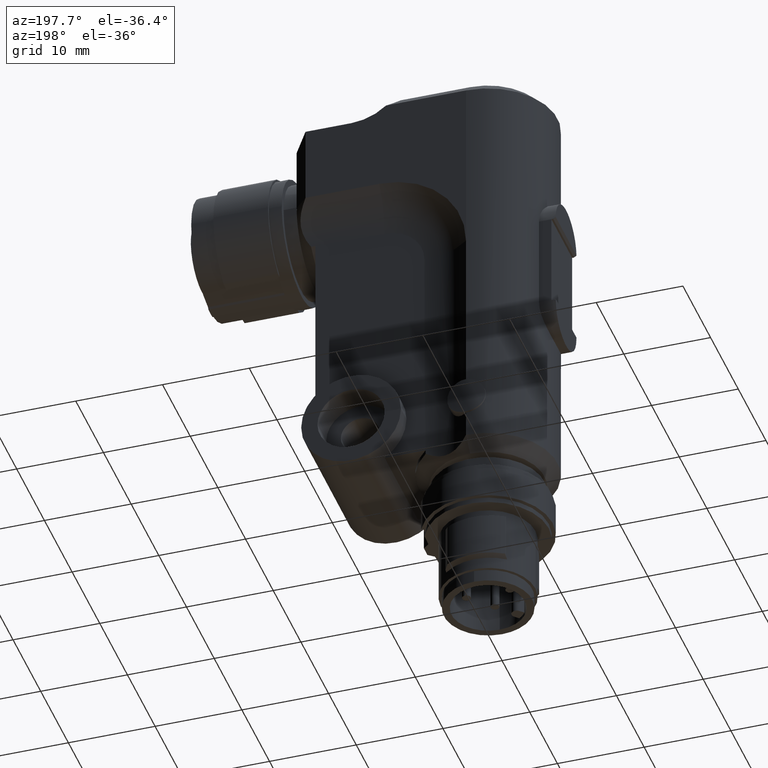
[diagram: clean part render]
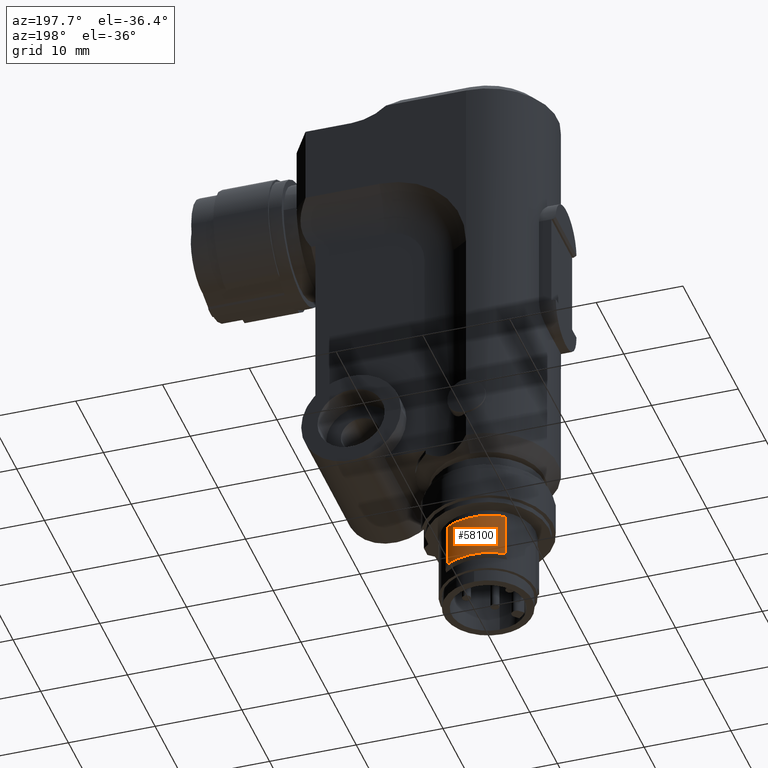
[diagram: same view with one face highlighted and labeled with its STEP entity id]
A machine part, auxiliary view. The second image highlights one B-rep face of the part: STEP entity #58100.
In plain terms, the highlighted cylindrical surface (partial cylindrical patch) has radius 6 mm, axis along (0, -0, -1).
Its self-contained STEP definition (entity closure, byte-faithful):
#42920=CARTESIAN_POINT('',(0.000227798348049646,0.00706739753394903,
-10.122447836798));
#42930=CARTESIAN_POINT('',(0.400298612059885,12.4191831965239,
-17.2923077904168));
#42940=CARTESIAN_POINT('',(-0.0039121872767538,0.00720083871703148,
-10.0292170296535));
#42950=CARTESIAN_POINT('',(-6.87469047086854,12.6536726944698,
-17.1990769832723));
#42960=CARTESIAN_POINT('',(-0.00693395635152427,0.00436778397316084,
-9.9656786439425));
#42970=CARTESIAN_POINT('',(-12.1846936985795,7.67528769498796,
-17.1355385975613));
#42980=CARTESIAN_POINT('',(-0.00706739753460539,0.000227798348351627,
-9.87244783679799));
#42990=CARTESIAN_POINT('',(-12.4191831965238,0.40029861206018,
-17.0423077904168));
#43000=CARTESIAN_POINT('',(-0.00720083871768651,-0.0039121872764567,
-9.77921702965347));
#43010=CARTESIAN_POINT('',(-12.6536726944698,-6.8746904708676,
-16.9490769832723));
#43020=CARTESIAN_POINT('',(-0.00436778397381232,-0.00693395635122185,
-9.7156786439425));
#43030=CARTESIAN_POINT('',(-7.6752876949892,-12.1846936985785,
-16.8855385975614));
#43040=CARTESIAN_POINT('',(-0.000227798349001773,-0.00706739753430385,
-9.62244783679799));
#43050=CARTESIAN_POINT('',(-0.400298612060752,-12.4191831965243,
-16.7923077904168));
#43060=CARTESIAN_POINT('',(0.00391218727580167,-0.0072008387173863,
-9.52921702965347));
#43070=CARTESIAN_POINT('',(6.87469047086771,-12.6536726944701,
-16.6990769832723));
#43080=CARTESIAN_POINT('',(0.00693395635057215,-0.00436778397351567,
-9.4656786439425));
#43090=CARTESIAN_POINT('',(12.1846936985786,-7.67528769498831,
-16.6355385975613));
#43100=CARTESIAN_POINT('',(0.00706739753365326,-0.000227798348706454,
-9.37244783679799));
#43110=CARTESIAN_POINT('',(12.4191831965231,-0.400298612060529,
-16.5423077904168));
#43120=CARTESIAN_POINT('',(0.00720083871673438,0.00391218727610232,
-9.27921702965348));
#43130=CARTESIAN_POINT('',(12.653672694469,6.87469047086726,
-16.4490769832723));
#43140=CARTESIAN_POINT('',(0.0043677839728602,0.00693395635086658,
-9.2156786439425));
#43150=CARTESIAN_POINT('',(7.67528769498845,12.1846936985781,
-16.3855385975613));
#43160=CARTESIAN_POINT('',(0.000227798348056751,0.00706739753394903,
-9.12244783679799));
#43170=CARTESIAN_POINT('',(0.40029861206002,12.419183196524,
-16.2923077904168));
#43180=CARTESIAN_POINT('',(-0.0039121872767609,0.00720083871703148,
-9.02921702965348));
#43190=CARTESIAN_POINT('',(-6.87469047086841,12.6536726944698,
-16.1990769832723));
#43200=CARTESIAN_POINT('',(-0.00693395635151717,0.0043677839731604,
-8.9656786439425));
#43210=CARTESIAN_POINT('',(-12.1846936985793,7.67528769498796,
-16.1355385975613));
#43220=CARTESIAN_POINT('',(-0.00706739753459829,0.000227798348351183,
-8.87244783679799));
#43230=CARTESIAN_POINT('',(-12.4191831965237,0.400298612060182,
-16.0423077904168));
#43240=CARTESIAN_POINT('',(-0.00720083871768651,-0.00391218727645803,
-8.77921702965347));
#43250=CARTESIAN_POINT('',(-12.6536726944697,-6.87469047086759,
-15.9490769832723));
#43260=CARTESIAN_POINT('',(-0.00436778397381943,-0.00693395635122185,
-8.7156786439425));
#43270=CARTESIAN_POINT('',(-7.67528769498907,-12.1846936985785,
-15.8855385975613));
#43280=CARTESIAN_POINT('',(-0.000227798349008879,-0.0070673975343043,
-8.62244783679799));
#43290=CARTESIAN_POINT('',(-0.400298612060617,-12.4191831965243,
-15.7923077904168));
#43300=CARTESIAN_POINT('',(0.00391218727580878,-0.00720083871738675,
-8.52921702965347));
#43310=CARTESIAN_POINT('',(6.87469047086784,-12.6536726944701,
-15.6990769832723));
#43320=CARTESIAN_POINT('',(0.00693395635056504,-0.00436778397351612,
-8.4656786439425));
#43330=CARTESIAN_POINT('',(12.1846936985788,-7.6752876949883,
-15.6355385975613));
#43340=CARTESIAN_POINT('',(0.00706739753365326,-0.000227798348706898,
-8.37244783679799));
#43350=CARTESIAN_POINT('',(12.4191831965232,-0.40029861206052,
-15.5423077904168));
#43360=CARTESIAN_POINT('',(0.00720083871673438,0.00391218727610143,
-8.27921702965347));
#43370=CARTESIAN_POINT('',(12.6536726944691,6.87469047086724,
-15.4490769832723));
#43380=CARTESIAN_POINT('',(0.0043677839728602,0.00693395635086569,
-8.2156786439425));
#43390=CARTESIAN_POINT('',(7.67528769498858,12.1846936985781,
-15.3855385975613));
#43400=CARTESIAN_POINT('',(0.000227798348049646,0.00706739753394769,
-8.12244783679799));
#43410=CARTESIAN_POINT('',(0.400298612060148,12.4191831965239,
-15.2923077904168));
#43420=CARTESIAN_POINT('',(-0.0039121872767609,0.00720083871703014,
-8.02921702965347));
#43430=CARTESIAN_POINT('',(-6.87469047086828,12.6536726944698,
-15.1990769832723));
#43440=CARTESIAN_POINT('',(-0.00693395635152427,0.00436778397315951,
-7.9656786439425));
#43450=CARTESIAN_POINT('',(-12.1846936985792,7.67528769498796,
-15.1355385975613));
#43460=CARTESIAN_POINT('',(-0.00706739753460539,0.00022779834834985,
-7.87244783679799));
#43470=CARTESIAN_POINT('',(-12.4191831965236,0.400298612060175,
-15.0423077904168));
#43480=CARTESIAN_POINT('',(-0.00720083871768651,-0.00391218727645892,
-7.77921702965347));
#43490=CARTESIAN_POINT('',(-12.6536726944695,-6.87469047086758,
-14.9490769832723));
#43500=CARTESIAN_POINT('',(-0.00436778397381943,-0.00693395635122229,
-7.71567864394251));
#43510=CARTESIAN_POINT('',(-7.67528769498894,-12.1846936985785,
-14.8855385975613));
#43520=CARTESIAN_POINT('',(-0.000227798349008879,-0.00706739753430474,
-7.62244783679799));
#43530=CARTESIAN_POINT('',(-0.400298612060489,-12.4191831965243,
-14.7923077904168));
#43540=CARTESIAN_POINT('',(0.00391218727580167,-0.00720083871738719,
-7.52921702965348));
#43550=CARTESIAN_POINT('',(6.87469047086797,-12.6536726944701,
-14.6990769832723));
#43560=CARTESIAN_POINT('',(0.00693395635056504,-0.00436778397351656,
-7.46567864394251));
#43570=CARTESIAN_POINT('',(12.1846936985789,-7.6752876949883,
-14.6355385975613));
#43580=CARTESIAN_POINT('',(0.00706739753364616,-0.00022779834870823,
-7.37244783679799));
#43590=CARTESIAN_POINT('',(12.4191831965233,-0.400298612060521,
-14.5423077904168));
#43600=CARTESIAN_POINT('',(0.00720083871672728,0.00391218727610143,
-7.27921702965348));
#43610=CARTESIAN_POINT('',(12.6536726944693,6.87469047086724,
-14.4490769832723));
#43620=CARTESIAN_POINT('',(0.0043677839728602,0.00693395635086524,
-7.2156786439425));
#43630=CARTESIAN_POINT('',(7.6752876949887,12.1846936985781,
-14.3855385975613));
#43640=CARTESIAN_POINT('',(0.000227798348049646,0.00706739753394769,
-7.12244783679799));
#43650=CARTESIAN_POINT('',(0.400298612060276,12.419183196524,
-14.2923077904168));
#43660=CARTESIAN_POINT('',(-0.0039121872767609,0.0072008387170297,
-7.02921702965347));
#43670=CARTESIAN_POINT('',(-6.87469047086815,12.6536726944698,
-14.1990769832723));
#43680=CARTESIAN_POINT('',(-0.00693395635152427,0.00436778397315951,
-6.9656786439425));
#43690=CARTESIAN_POINT('',(-12.1846936985791,7.67528769498796,
-14.1355385975613));
#43700=CARTESIAN_POINT('',(-0.00706739753460539,0.000227798348350738,
-6.87244783679799));
#43710=CARTESIAN_POINT('',(-12.4191831965235,0.400298612060177,
-14.0423077904168));
#43720=CARTESIAN_POINT('',(-0.00720083871769361,-0.00391218727645937,
-6.77921702965347));
#43730=CARTESIAN_POINT('',(-12.6536726944694,-6.87469047086759,
-13.9490769832723));
#43740=CARTESIAN_POINT('',(-0.00436778397381943,-0.00693395635122318,
-6.7156786439425));
#43750=CARTESIAN_POINT('',(-7.67528769498881,-12.1846936985785,
-13.8855385975613));
#43760=CARTESIAN_POINT('',(-0.000227798349008879,-0.00706739753430563,
-6.62244783679799));
#43770=CARTESIAN_POINT('',(-0.400298612060361,-12.4191831965243,
-13.7923077904168));
#43780=CARTESIAN_POINT('',(0.00391218727580167,-0.00720083871738808,
-6.52921702965348));
#43790=CARTESIAN_POINT('',(6.8746904708681,-12.6536726944701,
-13.6990769832723));
#43800=CARTESIAN_POINT('',(0.00693395635056504,-0.004367783973517,
-6.4656786439425));
#43810=CARTESIAN_POINT('',(12.184693698579,-7.67528769498831,
-13.6355385975613));
#43820=CARTESIAN_POINT('',(0.00706739753365326,-0.00022779834870823,
-6.37244783679799));
#43830=CARTESIAN_POINT('',(12.4191831965234,-0.400298612060527,
-13.5423077904168));
#43840=CARTESIAN_POINT('',(0.00720083871672728,0.00391218727610143,
-6.27921702965348));
#43850=CARTESIAN_POINT('',(12.6536726944694,6.87469047086724,
-13.4490769832723));
#43860=CARTESIAN_POINT('',(0.0043677839728602,0.0069339563508648,
-6.2156786439425));
#43870=CARTESIAN_POINT('',(7.67528769498884,12.1846936985781,
-13.3855385975613));
#43880=CARTESIAN_POINT('',(0.000227798348042541,0.00706739753394681,
-6.12244783679799));
#43890=CARTESIAN_POINT('',(0.400298612060411,12.4191831965239,
-13.2923077904168));
#43900=CARTESIAN_POINT('',(-0.0039121872767609,0.00720083871702926,
-6.02921702965348));
#43910=CARTESIAN_POINT('',(-6.87469047086802,12.6536726944698,
-13.1990769832723));
#43920=CARTESIAN_POINT('',(-0.00693395635152427,0.00436778397315907,
-5.96567864394251));
#43930=CARTESIAN_POINT('',(-12.1846936985789,7.67528769498796,
-13.1355385975613));
#43940=CARTESIAN_POINT('',(-0.00706739753460539,0.000227798348348518,
-5.87244783679799));
#43950=CARTESIAN_POINT('',(-12.4191831965233,0.400298612060183,
-13.0423077904168));
#43960=CARTESIAN_POINT('',(-0.00720083871768651,-0.00391218727645981,
-5.77921702965347));
#43970=CARTESIAN_POINT('',(-12.6536726944693,-6.87469047086758,
-12.9490769832723));
#43980=CARTESIAN_POINT('',(-0.00436778397381943,-0.00693395635122407,
-5.7156786439425));
#43990=CARTESIAN_POINT('',(-7.67528769498868,-12.1846936985785,
-12.8855385975613));
#44000=CARTESIAN_POINT('',(-0.000227798349008879,-0.00706739753430607,
-5.62244783679799));
#44010=CARTESIAN_POINT('',(-0.400298612060226,-12.4191831965243,
-12.7923077904168));
#44020=CARTESIAN_POINT('',(0.00391218727579457,-0.00720083871738897,
-5.52921702965347));
#44030=CARTESIAN_POINT('',(6.87469047086822,-12.6536726944701,
-12.6990769832723));
#44040=CARTESIAN_POINT('',(0.00693395635056504,-0.00436778397351834,
-5.4656786439425));
#44050=CARTESIAN_POINT('',(12.1846936985792,-7.67528769498831,
-12.6355385975613));
#44060=CARTESIAN_POINT('',(0.00706739753363905,-0.000227798348709118,
-5.37244783679799));
#44070=CARTESIAN_POINT('',(12.4191831965236,-0.400298612060529,
-12.5423077904168));
#44080=CARTESIAN_POINT('',(0.00720083871672728,0.00391218727609965,
-5.27921702965347));
#44090=CARTESIAN_POINT('',(12.6536726944695,6.87469047086723,
-12.4490769832723));
#44100=CARTESIAN_POINT('',(0.0043677839728602,0.00693395635086391,
-5.2156786439425));
#44110=CARTESIAN_POINT('',(7.67528769498897,12.1846936985781,
-12.3855385975613));
#44120=CARTESIAN_POINT('',(0.000227798348049646,0.00706739753394592,
-5.12244783679799));
#44130=CARTESIAN_POINT('',(0.400298612060546,12.419183196524,
-12.2923077904168));
#44140=CARTESIAN_POINT('',(-0.0039121872767609,0.00720083871702837,
-5.02921702965348));
#44150=CARTESIAN_POINT('',(-6.87469047086788,12.6536726944698,
-12.1990769832723));
#44160=CARTESIAN_POINT('',(-0.00693395635152427,0.00436778397315774,
-4.9656786439425));
#44170=CARTESIAN_POINT('',(-12.1846936985788,7.67528769498801,
-12.1355385975613));
#44180=CARTESIAN_POINT('',(-0.00706739753460539,0.000227798348348518,
-4.87244783679799));
#44190=CARTESIAN_POINT('',(-12.4191831965232,0.400298612060228,
-12.0423077904168));
#44200=CARTESIAN_POINT('',(-0.00720083871768651,-0.00391218727646026,
-4.77921702965348));
#44210=CARTESIAN_POINT('',(-12.6536726944691,-6.87469047086758,
-11.9490769832723));
#44220=CARTESIAN_POINT('',(-0.00436778397381943,-0.00693395635122451,
-4.7156786439425));
#44230=CARTESIAN_POINT('',(-7.67528769498854,-12.1846936985785,
-11.8855385975613));
#44240=CARTESIAN_POINT('',(-0.000227798349008879,-0.00706739753430696,
-4.62244783679799));
#44250=CARTESIAN_POINT('',(-0.400298612060091,-12.4191831965243,
-11.7923077904168));
#44260=CARTESIAN_POINT('',(0.00391218727580167,-0.00720083871738897,
-4.52921702965347));
#44270=CARTESIAN_POINT('',(6.87469047086836,-12.6536726944701,
-11.6990769832723));
#44280=CARTESIAN_POINT('',(0.00693395635055793,-0.00436778397351834,
-4.46567864394251));
#44290=CARTESIAN_POINT('',(12.1846936985793,-7.67528769498831,
-11.6355385975613));
#44300=CARTESIAN_POINT('',(0.00706739753363905,-0.000227798348709118,
-4.37244783679799));
#44310=CARTESIAN_POINT('',(12.4191831965237,-0.400298612060533,
-11.5423077904168));
#44320=CARTESIAN_POINT('',(0.00720083871672017,0.00391218727609921,
-4.27921702965347));
#44330=CARTESIAN_POINT('',(12.6536726944697,6.87469047086727,
-11.4490769832723));
#44340=CARTESIAN_POINT('',(0.00436778397285309,0.00693395635086302,
-4.2156786439425));
#44350=CARTESIAN_POINT('',(7.67528769498909,12.1846936985781,
-11.3855385975613));
#44360=CARTESIAN_POINT('',(0.000227798348049646,0.00706739753394547,
-4.12244783679799));
#44370=CARTESIAN_POINT('',(0.400298612060674,12.419183196524,
-11.2923077904168));
#44380=(BOUNDED_SURFACE() B_SPLINE_SURFACE(1,3,((#42920,#42940,#42960,
#42980,#43000,#43020,#43040,#43060,#43080,#43100,#43120,#43140,#43160,
#43180,#43200,#43220,#43240,#43260,#43280,#43300,#43320,#43340,#43360,
#43380,#43400,#43420,#43440,#43460,#43480,#43500,#43520,#43540,#43560,
#43580,#43600,#43620,#43640,#43660,#43680,#43700,#43720,#43740,#43760,
#43780,#43800,#43820,#43840,#43860,#43880,#43900,#43920,#43940,#43960,
#43980,#44000,#44020,#44040,#44060,#44080,#44100,#44120,#44140,#44160,
#44180,#44200,#44220,#44240,#44260,#44280,#44300,#44320,#44340,#44360),(
#42930,#42950,#42970,#42990,#43010,#43030,#43050,#43070,#43090,#43110,
#43130,#43150,#43170,#43190,#43210,#43230,#43250,#43270,#43290,#43310,
#43330,#43350,#43370,#43390,#43410,#43430,#43450,#43470,#43490,#43510,
#43530,#43550,#43570,#43590,#43610,#43630,#43650,#43670,#43690,#43710,
#43730,#43750,#43770,#43790,#43810,#43830,#43850,#43870,#43890,#43910,
#43930,#43950,#43970,#43990,#44010,#44030,#44050,#44070,#44090,#44110,
#44130,#44150,#44170,#44190,#44210,#44230,#44250,#44270,#44290,#44310,
#44330,#44350,#44370)),.UNSPECIFIED.,.F.,.F.,.F.) 
B_SPLINE_SURFACE_WITH_KNOTS((2,2),(4,3,3,3,3,3,3,3,3,3,3,3,3,3,3,3,3,3,3
,3,3,3,3,3,4),(-6.3214010908522,8.01831881638544),(-0.828427124746191,
-4.44089209850063E-16,0.82842712474619,1.65685424949238,2.48528137423857
,3.31370849898476,4.14213562373095,4.97056274847714,5.79898987322333,
6.62741699796952,7.45584412271571,8.2842712474619,9.11269837220809,
9.94112549695428,10.7695526217005,11.5979797464467,12.4264068711929,
13.254833995939,14.0832611206852,14.9116882454314,15.7401153701776,
16.5685424949238,17.39696961967,18.2253967444162,19.0538238691624),
.UNSPECIFIED.) GEOMETRIC_REPRESENTATION_ITEM() RATIONAL_B_SPLINE_SURFACE
(((1.17157287525381,0.942809041582063,0.942809041582063,1.17157287525381
,0.942809041582063,0.942809041582063,1.17157287525381,0.942809041582063,
0.942809041582063,1.17157287525381,0.942809041582063,0.942809041582063,
1.17157287525381,0.942809041582063,0.942809041582063,1.17157287525381,
0.942809041582063,0.942809041582063,1.17157287525381,0.942809041582063,
0.942809041582063,1.17157287525381,0.942809041582063,0.942809041582063,
1.17157287525381,0.942809041582063,0.942809041582063,1.17157287525381,
0.942809041582063,0.942809041582063,1.17157287525381,0.942809041582063,
0.942809041582063,1.17157287525381,0.942809041582063,0.942809041582063,
1.17157287525381,0.942809041582063,0.942809041582063,1.17157287525381,
0.942809041582063,0.942809041582063,1.17157287525381,0.942809041582063,
0.942809041582063,1.17157287525381,0.942809041582063,0.942809041582063,
1.17157287525381,0.942809041582063,0.942809041582063,1.17157287525381,
0.942809041582063,0.942809041582063,1.17157287525381,0.942809041582063,
0.942809041582063,1.17157287525381,0.942809041582063,0.942809041582063,
1.17157287525381,0.942809041582063,0.942809041582063,1.17157287525381,
0.942809041582063,0.942809041582063,1.17157287525381,0.942809041582063,
0.942809041582063,1.17157287525381,0.942809041582063,0.942809041582063,
1.17157287525381),(1.17157287525381,0.942809041582063,0.942809041582063,
1.17157287525381,0.942809041582063,0.942809041582063,1.17157287525381,
0.942809041582063,0.942809041582063,1.17157287525381,0.942809041582063,
0.942809041582063,1.17157287525381,0.942809041582063,0.942809041582063,
1.17157287525381,0.942809041582063,0.942809041582063,1.17157287525381,
0.942809041582063,0.942809041582063,1.17157287525381,0.942809041582063,
0.942809041582063,1.17157287525381,0.942809041582063,0.942809041582063,
1.17157287525381,0.942809041582063,0.942809041582063,1.17157287525381,
0.942809041582063,0.942809041582063,1.17157287525381,0.942809041582063,
0.942809041582063,1.17157287525381,0.942809041582063,0.942809041582063,
1.17157287525381,0.942809041582063,0.942809041582063,1.17157287525381,
0.942809041582063,0.942809041582063,1.17157287525381,0.942809041582063,
0.942809041582063,1.17157287525381,0.942809041582063,0.942809041582063,
1.17157287525381,0.942809041582063,0.942809041582063,1.17157287525381,
0.942809041582063,0.942809041582063,1.17157287525381,0.942809041582063,
0.942809041582063,1.17157287525381,0.942809041582063,0.942809041582063,
1.17157287525381,0.942809041582063,0.942809041582063,1.17157287525381,
0.942809041582063,0.942809041582063,1.17157287525381,0.942809041582063,
0.942809041582063,1.17157287525381))) REPRESENTATION_ITEM('') SURFACE())
;
#45520=CARTESIAN_POINT('',(0.000227798348092279,0.00706739753483587,
-18.1049864329676));
#45530=CARTESIAN_POINT('',(0.400298612059878,12.4191831965239,
-10.9351264793493));
#45540=CARTESIAN_POINT('',(-0.00391218727723697,0.00720083871793298,
-18.0117556258231));
#45550=CARTESIAN_POINT('',(-6.87469047086843,12.6536726944698,
-10.8418956722048));
#45560=CARTESIAN_POINT('',(-0.00693395635236982,0.00436778397371018,
-17.9482172401121));
#45570=CARTESIAN_POINT('',(-12.1846936985778,7.67528769498796,
-10.7783572864939));
#45580=CARTESIAN_POINT('',(-0.00706739753547225,0.000227798348384045,
-17.8549864329676));
#45590=CARTESIAN_POINT('',(-12.4191831965239,0.40029861206018,
-10.6851264793495));
#45600=CARTESIAN_POINT('',(-0.00720083871856758,-0.00391218727694032,
-17.7617556258231));
#45610=CARTESIAN_POINT('',(-12.65367269447,-6.87469047086761,
-10.5918956722051));
#45620=CARTESIAN_POINT('',(-0.00436778397434523,-0.00693395635208161,
-17.6982172401121));
#45630=CARTESIAN_POINT('',(-7.67528769498754,-12.1846936985785,
-10.5283572864942));
#45640=CARTESIAN_POINT('',(-0.000227798349023089,-0.00706739753518004,
-17.6049864329676));
#45650=CARTESIAN_POINT('',(-0.400298612060759,-12.4191831965243,
-10.4351264793497));
#45660=CARTESIAN_POINT('',(0.00391218727630616,-0.00720083871827759,
-17.5117556258231));
#45670=CARTESIAN_POINT('',(6.87469047086758,-12.6536726944701,
-10.3418956722052));
#45680=CARTESIAN_POINT('',(0.00693395635143901,-0.00436778397405391,
-17.4482172401121));
#45690=CARTESIAN_POINT('',(12.184693698577,-7.67528769498832,
-10.2783572864941));
#45700=CARTESIAN_POINT('',(0.00706739753454144,-0.000227798348729991,
-17.3549864329676));
#45710=CARTESIAN_POINT('',(12.4191831965231,-0.400298612060534,
-10.1851264793495));
#45720=CARTESIAN_POINT('',(0.00720083871764388,0.0039121872765957,
-17.2617556258231));
#45730=CARTESIAN_POINT('',(12.6536726944692,6.87469047086725,
-10.0918956722049));
#45740=CARTESIAN_POINT('',(0.00436778397341442,0.0069339563517361,
-17.1982172401121));
#45750=CARTESIAN_POINT('',(7.67528769498676,12.1846936985781,
-10.0283572864938));
#45760=CARTESIAN_POINT('',(0.000227798348092279,0.00706739753483587,
-17.1049864329676));
#45770=CARTESIAN_POINT('',(0.400298612060013,12.4191831965239,
-9.9351264793493));
#45780=CARTESIAN_POINT('',(-0.00391218727723697,0.00720083871793253,
-17.0117556258231));
#45790=CARTESIAN_POINT('',(-6.87469047086829,12.6536726944698,
-9.8418956722048));
#45800=CARTESIAN_POINT('',(-0.00693395635237692,0.00436778397370929,
-16.9482172401121));
#45810=CARTESIAN_POINT('',(-12.1846936985777,7.67528769498796,
-9.77835728649392));
#45820=CARTESIAN_POINT('',(-0.00706739753547225,0.000227798348384489,
-16.8549864329676));
#45830=CARTESIAN_POINT('',(-12.4191831965238,0.400298612060182,
-9.68512647934952));
#45840=CARTESIAN_POINT('',(-0.00720083871857469,-0.00391218727694032,
-16.7617556258231));
#45850=CARTESIAN_POINT('',(-12.6536726944699,-6.87469047086759,
-9.59189567220513));
#45860=CARTESIAN_POINT('',(-0.00436778397434523,-0.00693395635208205,
-16.6982172401121));
#45870=CARTESIAN_POINT('',(-7.67528769498741,-12.1846936985785,
-9.52835728649423));
#45880=CARTESIAN_POINT('',(-0.000227798349023089,-0.00706739753518137,
-16.6049864329676));
#45890=CARTESIAN_POINT('',(-0.400298612060631,-12.4191831965243,
-9.43512647934971));
#45900=CARTESIAN_POINT('',(0.00391218727629905,-0.00720083871827848,
-16.5117556258231));
#45910=CARTESIAN_POINT('',(6.8746904708677,-12.6536726944701,
-9.34189567220518));
#45920=CARTESIAN_POINT('',(0.00693395635143901,-0.00436778397405524,
-16.4482172401121));
#45930=CARTESIAN_POINT('',(12.1846936985771,-7.67528769498831,
-9.27835728649412));
#45940=CARTESIAN_POINT('',(0.00706739753454144,-0.000227798348730435,
-16.3549864329676));
#45950=CARTESIAN_POINT('',(12.4191831965232,-0.400298612060527,
-9.18512647934949));
#45960=CARTESIAN_POINT('',(0.00720083871764388,0.00391218727659526,
-16.2617556258231));
#45970=CARTESIAN_POINT('',(12.6536726944693,6.87469047086724,
-9.09189567220485));
#45980=CARTESIAN_POINT('',(0.00436778397341442,0.00693395635173566,
-16.1982172401121));
#45990=CARTESIAN_POINT('',(7.6752876949869,12.1846936985781,
-9.02835728649381));
#46000=CARTESIAN_POINT('',(0.000227798348085173,0.00706739753483365,
-16.1049864329676));
#46010=CARTESIAN_POINT('',(0.400298612060148,12.4191831965239,
-8.9351264793493));
#46020=CARTESIAN_POINT('',(-0.00391218727723697,0.00720083871793253,
-16.0117556258231));
#46030=CARTESIAN_POINT('',(-6.87469047086817,12.6536726944698,
-8.8418956722048));
#46040=CARTESIAN_POINT('',(-0.00693395635237692,0.00436778397370885,
-15.9482172401121));
#46050=CARTESIAN_POINT('',(-12.1846936985776,7.67528769498796,
-8.77835728649392));
#46060=CARTESIAN_POINT('',(-0.00706739753547225,0.000227798348384489,
-15.8549864329676));
#46070=CARTESIAN_POINT('',(-12.4191831965237,0.400298612060173,
-8.68512647934952));
#46080=CARTESIAN_POINT('',(-0.00720083871857469,-0.00391218727694165,
-15.7617556258231));
#46090=CARTESIAN_POINT('',(-12.6536726944697,-6.87469047086759,
-8.59189567220513));
#46100=CARTESIAN_POINT('',(-0.00436778397435234,-0.00693395635208161,
-15.6982172401121));
#46110=CARTESIAN_POINT('',(-7.67528769498728,-12.1846936985785,
-8.52835728649423));
#46120=CARTESIAN_POINT('',(-0.000227798349023089,-0.00706739753518049,
-15.6049864329676));
#46130=CARTESIAN_POINT('',(-0.400298612060503,-12.4191831965243,
-8.43512647934971));
#46140=CARTESIAN_POINT('',(0.00391218727630616,-0.00720083871827981,
-15.5117556258231));
#46150=CARTESIAN_POINT('',(6.87469047086783,-12.6536726944701,
-8.34189567220518));
#46160=CARTESIAN_POINT('',(0.00693395635143901,-0.00436778397405613,
-15.4482172401121));
#46170=CARTESIAN_POINT('',(12.1846936985773,-7.67528769498831,
-8.27835728649412));
#46180=CARTESIAN_POINT('',(0.00706739753453434,-0.000227798348730879,
-15.3549864329676));
#46190=CARTESIAN_POINT('',(12.4191831965234,-0.400298612060528,
-8.18512647934949));
#46200=CARTESIAN_POINT('',(0.00720083871763677,0.00391218727659481,
-15.2617556258231));
#46210=CARTESIAN_POINT('',(12.6536726944695,6.87469047086723,
-8.09189567220485));
#46220=CARTESIAN_POINT('',(0.00436778397341442,0.0069339563517361,
-15.1982172401121));
#46230=CARTESIAN_POINT('',(7.67528769498703,12.1846936985781,
-8.02835728649381));
#46240=CARTESIAN_POINT('',(0.000227798348085173,0.00706739753483321,
-15.1049864329676));
#46250=CARTESIAN_POINT('',(0.400298612060269,12.4191831965239,
-7.9351264793493));
#46260=CARTESIAN_POINT('',(-0.00391218727723697,0.00720083871793209,
-15.0117556258231));
#46270=CARTESIAN_POINT('',(-6.87469047086804,12.6536726944698,
-7.84189567220479));
#46280=CARTESIAN_POINT('',(-0.00693395635237692,0.00436778397370841,
-14.9482172401121));
#46290=CARTESIAN_POINT('',(-12.1846936985774,7.67528769498796,
-7.77835728649392));
#46300=CARTESIAN_POINT('',(-0.00706739753547225,0.000227798348383157,
-14.8549864329676));
#46310=CARTESIAN_POINT('',(-12.4191831965235,0.400298612060176,
-7.68512647934952));
#46320=CARTESIAN_POINT('',(-0.00720083871857469,-0.00391218727694298,
-14.7617556258231));
#46330=CARTESIAN_POINT('',(-12.6536726944696,-6.87469047086759,
-7.59189567220512));
#46340=CARTESIAN_POINT('',(-0.00436778397435234,-0.00693395635208338,
-14.6982172401121));
#46350=CARTESIAN_POINT('',(-7.67528769498714,-12.1846936985785,
-7.52835728649423));
#46360=CARTESIAN_POINT('',(-0.000227798349023089,-0.00706739753518093,
-14.6049864329676));
#46370=CARTESIAN_POINT('',(-0.400298612060375,-12.4191831965243,
-7.43512647934971));
#46380=CARTESIAN_POINT('',(0.00391218727629905,-0.00720083871828026,
-14.5117556258231));
#46390=CARTESIAN_POINT('',(6.87469047086797,-12.6536726944701,
-7.34189567220518));
#46400=CARTESIAN_POINT('',(0.00693395635143901,-0.00436778397405568,
-14.4482172401121));
#46410=CARTESIAN_POINT('',(12.1846936985774,-7.67528769498832,
-7.27835728649412));
#46420=CARTESIAN_POINT('',(0.00706739753453434,-0.000227798348730879,
-14.3549864329676));
#46430=CARTESIAN_POINT('',(12.4191831965235,-0.400298612060533,
-7.18512647934949));
#46440=CARTESIAN_POINT('',(0.00720083871763677,0.00391218727659348,
-14.2617556258231));
#46450=CARTESIAN_POINT('',(12.6536726944696,6.87469047086723,
-7.09189567220485));
#46460=CARTESIAN_POINT('',(0.00436778397341442,0.00693395635173433,
-14.1982172401121));
#46470=CARTESIAN_POINT('',(7.67528769498715,12.1846936985781,
-7.02835728649381));
#46480=CARTESIAN_POINT('',(0.000227798348092279,0.00706739753483276,
-14.1049864329676));
#46490=CARTESIAN_POINT('',(0.400298612060404,12.4191831965239,
-6.9351264793493));
#46500=CARTESIAN_POINT('',(-0.00391218727723697,0.00720083871793165,
-14.0117556258231));
#46510=CARTESIAN_POINT('',(-6.87469047086791,12.6536726944698,
-6.8418956722048));
#46520=CARTESIAN_POINT('',(-0.00693395635237692,0.00436778397370796,
-13.9482172401121));
#46530=CARTESIAN_POINT('',(-12.1846936985773,7.67528769498796,
-6.77835728649391));
#46540=CARTESIAN_POINT('',(-0.00706739753547936,0.000227798348381825,
-13.8549864329676));
#46550=CARTESIAN_POINT('',(-12.4191831965234,0.400298612060179,
-6.68512647934952));
#46560=CARTESIAN_POINT('',(-0.00720083871857469,-0.00391218727694342,
-13.7617556258231));
#46570=CARTESIAN_POINT('',(-12.6536726944695,-6.87469047086758,
-6.59189567220513));
#46580=CARTESIAN_POINT('',(-0.00436778397435234,-0.00693395635208383,
-13.6982172401121));
#46590=CARTESIAN_POINT('',(-7.67528769498701,-12.1846936985785,
-6.52835728649423));
#46600=CARTESIAN_POINT('',(-0.000227798349030195,-0.00706739753518226,
-13.6049864329676));
#46610=CARTESIAN_POINT('',(-0.40029861206024,-12.4191831965243,
-6.4351264793497));
#46620=CARTESIAN_POINT('',(0.00391218727629905,-0.00720083871828114,
-13.5117556258231));
#46630=CARTESIAN_POINT('',(6.8746904708681,-12.6536726944701,
-6.34189567220518));
#46640=CARTESIAN_POINT('',(0.00693395635143901,-0.00436778397405746,
-13.4482172401121));
#46650=CARTESIAN_POINT('',(12.1846936985775,-7.67528769498832,
-6.27835728649412));
#46660=CARTESIAN_POINT('',(0.00706739753453434,-0.000227798348731323,
-13.3549864329676));
#46670=CARTESIAN_POINT('',(12.4191831965236,-0.400298612060536,
-6.18512647934949));
#46680=CARTESIAN_POINT('',(0.00720083871763677,0.00391218727659259,
-13.2617556258231));
#46690=CARTESIAN_POINT('',(12.6536726944697,6.87469047086723,
-6.09189567220485));
#46700=CARTESIAN_POINT('',(0.00436778397340731,0.00693395635173433,
-13.1982172401121));
#46710=CARTESIAN_POINT('',(7.67528769498728,12.1846936985781,
-6.0283572864938));
#46720=CARTESIAN_POINT('',(0.000227798348085173,0.00706739753483321,
-13.1049864329676));
#46730=CARTESIAN_POINT('',(0.400298612060531,12.4191831965239,
-5.9351264793493));
#46740=CARTESIAN_POINT('',(-0.00391218727723697,0.00720083871793031,
-13.0117556258231));
#46750=CARTESIAN_POINT('',(-6.87469047086778,12.6536726944698,
-5.8418956722048));
#46760=CARTESIAN_POINT('',(-0.00693395635238403,0.00436778397370796,
-12.9482172401121));
#46770=CARTESIAN_POINT('',(-12.1846936985772,7.67528769498801,
-5.77835728649392));
#46780=CARTESIAN_POINT('',(-0.00706739753547936,0.000227798348381825,
-12.8549864329676));
#46790=CARTESIAN_POINT('',(-12.4191831965233,0.400298612060226,
-5.68512647934952));
#46800=CARTESIAN_POINT('',(-0.00720083871857469,-0.00391218727694342,
-12.7617556258231));
#46810=CARTESIAN_POINT('',(-12.6536726944693,-6.87469047086758,
-5.59189567220513));
#46820=CARTESIAN_POINT('',(-0.00436778397435234,-0.00693395635208427,
-12.6982172401121));
#46830=CARTESIAN_POINT('',(-7.67528769498688,-12.1846936985785,
-5.52835728649423));
#46840=CARTESIAN_POINT('',(-0.000227798349030195,-0.00706739753518315,
-12.6049864329676));
#46850=CARTESIAN_POINT('',(-0.400298612060105,-12.4191831965243,
-5.43512647934971));
#46860=CARTESIAN_POINT('',(0.00391218727629905,-0.00720083871828114,
-12.5117556258231));
#46870=CARTESIAN_POINT('',(6.87469047086822,-12.6536726944701,
-5.34189567220518));
#46880=CARTESIAN_POINT('',(0.00693395635143901,-0.00436778397405835,
-12.4482172401121));
#46890=CARTESIAN_POINT('',(12.1846936985777,-7.67528769498833,
-5.27835728649412));
#46900=CARTESIAN_POINT('',(0.00706739753453434,-0.000227798348732211,
-12.3549864329676));
#46910=CARTESIAN_POINT('',(12.4191831965238,-0.400298612060539,
-5.18512647934949));
#46920=CARTESIAN_POINT('',(0.00720083871763677,0.00391218727659259,
-12.2617556258231));
#46930=CARTESIAN_POINT('',(12.6536726944699,6.87469047086727,
-5.09189567220486));
#46940=CARTESIAN_POINT('',(0.00436778397340731,0.006933956351733,
-12.1982172401121));
#46950=CARTESIAN_POINT('',(7.67528769498742,12.1846936985781,
-5.02835728649381));
#46960=CARTESIAN_POINT('',(0.000227798348085173,0.00706739753483143,
-12.1049864329676));
#46970=CARTESIAN_POINT('',(0.400298612060659,12.4191831965239,
-4.9351264793493));
#46980=(BOUNDED_SURFACE() B_SPLINE_SURFACE(1,3,((#45520,#45540,#45560,
#45580,#45600,#45620,#45640,#45660,#45680,#45700,#45720,#45740,#45760,
#45780,#45800,#45820,#45840,#45860,#45880,#45900,#45920,#45940,#45960,
#45980,#46000,#46020,#46040,#46060,#46080,#46100,#46120,#46140,#46160,
#46180,#46200,#46220,#46240,#46260,#46280,#46300,#46320,#46340,#46360,
#46380,#46400,#46420,#46440,#46460,#46480,#46500,#46520,#46540,#46560,
#46580,#46600,#46620,#46640,#46660,#46680,#46700,#46720,#46740,#46760,
#46780,#46800,#46820,#46840,#46860,#46880,#46900,#46920,#46940,#46960),(
#45530,#45550,#45570,#45590,#45610,#45630,#45650,#45670,#45690,#45710,
#45730,#45750,#45770,#45790,#45810,#45830,#45850,#45870,#45890,#45910,
#45930,#45950,#45970,#45990,#46010,#46030,#46050,#46070,#46090,#46110,
#46130,#46150,#46170,#46190,#46210,#46230,#46250,#46270,#46290,#46310,
#46330,#46350,#46370,#46390,#46410,#46430,#46450,#46470,#46490,#46510,
#46530,#46550,#46570,#46590,#46610,#46630,#46650,#46670,#46690,#46710,
#46730,#46750,#46770,#46790,#46810,#46830,#46850,#46870,#46890,#46910,
#46930,#46950,#46970)),.UNSPECIFIED.,.F.,.F.,.F.) 
B_SPLINE_SURFACE_WITH_KNOTS((2,2),(4,3,3,3,3,3,3,3,3,3,3,3,3,3,3,3,3,3,3
,3,3,3,3,3,4),(-6.32140109085118,8.01831881638544),(-0.828427124746191,
-4.44089209850063E-16,0.82842712474619,1.65685424949238,2.48528137423857
,3.31370849898476,4.14213562373095,4.97056274847714,5.79898987322333,
6.62741699796952,7.45584412271571,8.2842712474619,9.11269837220809,
9.94112549695428,10.7695526217005,11.5979797464467,12.4264068711929,
13.254833995939,14.0832611206852,14.9116882454314,15.7401153701776,
16.5685424949238,17.39696961967,18.2253967444162,19.0538238691624),
.UNSPECIFIED.) GEOMETRIC_REPRESENTATION_ITEM() RATIONAL_B_SPLINE_SURFACE
(((1.17157287525381,0.942809041582063,0.942809041582063,1.17157287525381
,0.942809041582063,0.942809041582063,1.17157287525381,0.942809041582063,
0.942809041582063,1.17157287525381,0.942809041582063,0.942809041582063,
1.17157287525381,0.942809041582063,0.942809041582063,1.17157287525381,
0.942809041582063,0.942809041582063,1.17157287525381,0.942809041582063,
0.942809041582063,1.17157287525381,0.942809041582063,0.942809041582063,
1.17157287525381,0.942809041582063,0.942809041582063,1.17157287525381,
0.942809041582063,0.942809041582063,1.17157287525381,0.942809041582063,
0.942809041582063,1.17157287525381,0.942809041582063,0.942809041582063,
1.17157287525381,0.942809041582063,0.942809041582063,1.17157287525381,
0.942809041582063,0.942809041582063,1.17157287525381,0.942809041582063,
0.942809041582063,1.17157287525381,0.942809041582063,0.942809041582063,
1.17157287525381,0.942809041582063,0.942809041582063,1.17157287525381,
0.942809041582063,0.942809041582063,1.17157287525381,0.942809041582063,
0.942809041582063,1.17157287525381,0.942809041582063,0.942809041582063,
1.17157287525381,0.942809041582063,0.942809041582063,1.17157287525381,
0.942809041582063,0.942809041582063,1.17157287525381,0.942809041582063,
0.942809041582063,1.17157287525381,0.942809041582063,0.942809041582063,
1.17157287525381),(1.17157287525381,0.942809041582063,0.942809041582063,
1.17157287525381,0.942809041582063,0.942809041582063,1.17157287525381,
0.942809041582063,0.942809041582063,1.17157287525381,0.942809041582063,
0.942809041582063,1.17157287525381,0.942809041582063,0.942809041582063,
1.17157287525381,0.942809041582063,0.942809041582063,1.17157287525381,
0.942809041582063,0.942809041582063,1.17157287525381,0.942809041582063,
0.942809041582063,1.17157287525381,0.942809041582063,0.942809041582063,
1.17157287525381,0.942809041582063,0.942809041582063,1.17157287525381,
0.942809041582063,0.942809041582063,1.17157287525381,0.942809041582063,
0.942809041582063,1.17157287525381,0.942809041582063,0.942809041582063,
1.17157287525381,0.942809041582063,0.942809041582063,1.17157287525381,
0.942809041582063,0.942809041582063,1.17157287525381,0.942809041582063,
0.942809041582063,1.17157287525381,0.942809041582063,0.942809041582063,
1.17157287525381,0.942809041582063,0.942809041582063,1.17157287525381,
0.942809041582063,0.942809041582063,1.17157287525381,0.942809041582063,
0.942809041582063,1.17157287525381,0.942809041582063,0.942809041582063,
1.17157287525381,0.942809041582063,0.942809041582063,1.17157287525381,
0.942809041582063,0.942809041582063,1.17157287525381,0.942809041582063,
0.942809041582063,1.17157287525381))) REPRESENTATION_ITEM('') SURFACE())
;
#54800=CARTESIAN_POINT('',(-4.86398050694117,-3.51307467006666,
-8.2278514093766));
#54810=VERTEX_POINT('',#54800);
#54840=CARTESIAN_POINT('',(-7.8159700933611E-14,-2.04281036531029E-14,
-16.5000000000002));
#54850=DIRECTION('',(1.38777878078145E-15,4.92661467177413E-16,-1.));
#54860=DIRECTION('',(-0.99999639415828,-0.00268545535035944,
-1.33226762955019E-15));
#54870=AXIS2_PLACEMENT_3D('',#54840,#54850,#54860);
#54880=CYLINDRICAL_SURFACE('',#54870,6.);
#54890=CARTESIAN_POINT('',(-4.86398050598013,-3.51307467006415,
-8.22785140891106));
#54900=CARTESIAN_POINT('',(-4.90628372909129,-3.45450430880592,
-8.22977345246574));
#54910=CARTESIAN_POINT('',(-4.94755725705943,-3.39513003884093,
-8.23169651651081));
#54920=CARTESIAN_POINT('',(-4.98775755781029,-3.33500742795386,
-8.23361991313891));
#54930=CARTESIAN_POINT('',(-5.02795784343579,-3.27488483968791,
-8.23554330904333));
#54940=CARTESIAN_POINT('',(-5.06708474251461,-3.21401413608734,
-8.23746703070074));
#54950=CARTESIAN_POINT('',(-5.10509856857638,-3.15245437796021,
-8.23939038325583));
#54960=CARTESIAN_POINT('',(-5.1431123939044,-3.09089462102131,
-8.24131373577379));
#54970=CARTESIAN_POINT('',(-5.18001299997989,-3.02864604567567,
-8.24323671233262));
#54980=CARTESIAN_POINT('',(-5.21576509323805,-2.9657704719281,
-8.24515862761757));
#54990=CARTESIAN_POINT('',(-5.25151719855401,-2.902894876975,
-8.24708054355072));
#55000=CARTESIAN_POINT('',(-5.28612065991781,-2.83939252703296,
-8.24900139139437));
#55010=CARTESIAN_POINT('',(-5.31954499818044,-2.77532719014075,
-8.25092051170703));
#55020=CARTESIAN_POINT('',(-5.35296935985738,-2.71126180836971,
-8.25283963336408));
#55030=CARTESIAN_POINT('',(-5.38521448422306,-2.64663368695772,
-8.25475702078396));
#55040=CARTESIAN_POINT('',(-5.41625500125277,-2.58150765278848,
-8.25667205700256));
#55050=CARTESIAN_POINT('',(-5.44728961147714,-2.51639401167334,
-8.25858672880241));
#55060=CARTESIAN_POINT('',(-5.47713438417092,-2.45075784625142,
-8.2604998068145));
#55070=CARTESIAN_POINT('',(-5.50583392097346,-2.38449005757187,
-8.26241564755944));
#55080=CARTESIAN_POINT('',(-5.53452748211174,-2.31823606681732,
-8.26433108939825));
#55090=CARTESIAN_POINT('',(-5.56204831778748,-2.25140961244408,
-8.26624756268649));
#55100=CARTESIAN_POINT('',(-5.58836499862151,-2.18407340585953,
-8.26816446321017));
#55110=CARTESIAN_POINT('',(-5.61468166518884,-2.11673723577904,
-8.27008136269466));
#55120=CARTESIAN_POINT('',(-5.63979406756885,-2.04889156531564,
-8.27199868264823));
#55130=CARTESIAN_POINT('',(-5.66367511208511,-1.98060198544484,
-8.27391581684327));
#55140=CARTESIAN_POINT('',(-5.68755615224098,-1.9123124180429,
-8.27583295068826));
#55150=CARTESIAN_POINT('',(-5.71020573973208,-1.84357920192797,
-8.27774989196064));
#55160=CARTESIAN_POINT('',(-5.73160154411873,-1.77446998832213,
-8.27966604888592));
#55170=CARTESIAN_POINT('',(-5.7529973522133,-1.70536076273956,
-8.28158220614327));
#55180=CARTESIAN_POINT('',(-5.77313929825712,-1.63587580563386,
-8.28349757225804));
#55190=CARTESIAN_POINT('',(-5.79201010194409,-1.56608396294014,
-8.2854115858931));
#55200=CARTESIAN_POINT('',(-5.82975534559708,-1.42648682912618,
-8.28923998198099));
#55210=CARTESIAN_POINT('',(-5.86239840135922,-1.28571979652334,
-8.29306136257604));
#55220=CARTESIAN_POINT('',(-5.8898946533453,-1.14417698477793,
-8.29687608035314));
#55230=CARTESIAN_POINT('',(-5.90365179079868,-1.07335919049436,
-8.29878468945492));
#55240=CARTESIAN_POINT('',(-5.916144533437,-1.00222507406159,
-8.30069492540865));
#55250=CARTESIAN_POINT('',(-5.9273546837858,-0.930841797837706,
-8.30260634240071));
#55260=CARTESIAN_POINT('',(-5.93856482617215,-0.859458572316516,
-8.30451775803511));
#55270=CARTESIAN_POINT('',(-5.94849232089889,-0.787826453626633,
-8.30643034802044));
#55280=CARTESIAN_POINT('',(-5.95712370119631,-0.716014810347181,
-8.30834367073169));
#55290=CARTESIAN_POINT('',(-5.96575507850134,-0.644203191963937,
-8.31025699277962));
#55300=CARTESIAN_POINT('',(-5.97309030192263,-0.572212322638723,
-8.31217104079057));
#55310=CARTESIAN_POINT('',(-5.97912093040175,-0.500112886873639,
-8.31408539377789));
#55320=CARTESIAN_POINT('',(-5.98515155894143,-0.428013450384489,
-8.31599974678443));
#55330=CARTESIAN_POINT('',(-5.98987756955834,-0.355805724309061,
-8.31791439799407));
#55340=CARTESIAN_POINT('',(-5.99329569345311,-0.283560806223693,
-8.31982896273859));
#55350=CARTESIAN_POINT('',(-5.99671381860224,-0.211315861626381,
-8.3217435281857));
#55360=CARTESIAN_POINT('',(-5.99882405083843,-0.139034001280582,
-8.32365800044516));
#55370=CARTESIAN_POINT('',(-5.99962829300102,-0.0667858205024632,
-8.32557204657421));
#55380=CARTESIAN_POINT('',(-6.00043253575166,0.00546241310162636,
-8.32748609410277));
#55390=CARTESIAN_POINT('',(-5.99993079910753,0.0776766953328339,
-8.32939970888717));
#55400=CARTESIAN_POINT('',(-5.99813000831658,0.149787861101018,
-8.33131262536887));
#55410=CARTESIAN_POINT('',(-5.99632981289201,0.221875185918646,
-8.33322490941388));
#55420=CARTESIAN_POINT('',(-5.99323040679635,0.293946838330106,
-8.3351380267604));
#55430=CARTESIAN_POINT('',(-5.98882473707744,0.366030420278959,
-8.33705189410755));
#55440=CARTESIAN_POINT('',(-5.98441955081833,0.438106092076537,
-8.33896555143489));
#55450=CARTESIAN_POINT('',(-5.97870929644275,0.510159515620956,
-8.34087975341283));
#55460=CARTESIAN_POINT('',(-5.97169454859698,0.582120449949555,
-8.34279419229657));
#55470=CARTESIAN_POINT('',(-5.96467980434439,0.654081347417286,
-8.34470863019968));
#55480=CARTESIAN_POINT('',(-5.95636058372795,0.725949481261463,
-8.3466232983204));
#55490=CARTESIAN_POINT('',(-5.94674263667636,0.797654068577647,
-8.34853783094905));
#55500=CARTESIAN_POINT('',(-5.93712469109845,0.869358644907122,
-8.35045236328434));
#55510=CARTESIAN_POINT('',(-5.92620805314484,0.940899399256534,
-8.35236675336748));
#55520=CARTESIAN_POINT('',(-5.91400364871117,1.01220592915492,
-8.35428059296331));
#55530=CARTESIAN_POINT('',(-5.90179924180324,1.08351247350957,
-8.35619443294714));
#55540=CARTESIAN_POINT('',(-5.88830711896159,1.15458452070864,
-8.35810771567222));
#55550=CARTESIAN_POINT('',(-5.87354323643222,1.2253529490546,
-8.3600200058888));
#55560=CARTESIAN_POINT('',(-5.8587793455948,1.29612141722393,
-8.36193229718148));
#55570=CARTESIAN_POINT('',(-5.84274376140002,1.36658600034623,
-8.36384358924305));
#55580=CARTESIAN_POINT('',(-5.82545717831806,1.43667973591311,
-8.36575343589637));
#55590=CARTESIAN_POINT('',(-5.80816633156946,1.50679075981974,
-8.36766375360574));
#55600=CARTESIAN_POINT('',(-5.78964568839452,1.57645424394922,
-8.36957052050547));
#55610=CARTESIAN_POINT('',(-5.76985537725064,1.64583380862494,
-8.37147955897974));
#55620=CARTESIAN_POINT('',(-5.75006341981473,1.71521914476244,
-8.37338875626074));
#55630=CARTESIAN_POINT('',(-5.72900093938877,1.78431235107078,
-8.37530002075193));
#55640=CARTESIAN_POINT('',(-5.70668234112578,1.85304523891993,
-8.37721286075789));
#55650=CARTESIAN_POINT('',(-5.68436375803471,1.92177808004527,
-8.37912569946352));
#55660=CARTESIAN_POINT('',(-5.66078912912815,1.99015033964774,
-8.38104010702362));
#55670=CARTESIAN_POINT('',(-5.63597807018847,2.05809406790712,
-8.38295553883398));
#55680=CARTESIAN_POINT('',(-5.61116701911544,2.12603777462412,
-8.38487097003702));
#55690=CARTESIAN_POINT('',(-5.58511962730697,2.19355268814271,
-8.38678741872056));
#55700=CARTESIAN_POINT('',(-5.55786057222722,2.26057202045892,
-8.38870430344605));
#55710=CARTESIAN_POINT('',(-5.53060151607441,2.32759135541337,
-8.39062118824699));
#55720=CARTESIAN_POINT('',(-5.50213090198571,2.394114852165,
-8.39253850227564));
#55730=CARTESIAN_POINT('',(-5.47247818216618,2.46007775196545,
-8.39445564317625));
#55740=CARTESIAN_POINT('',(-5.44282545058702,2.52604067792537,
-8.39637278483716));
#55750=CARTESIAN_POINT('',(-5.41199073320362,2.59144275831496,
-8.3982897465766));
#55760=CARTESIAN_POINT('',(-5.38000783299048,2.65622207598722,
-8.40020592134124));
#55770=CARTESIAN_POINT('',(-5.34802490841813,2.72100144299749,
-8.40212209756529));
#55780=CARTESIAN_POINT('',(-5.31489393384485,2.78515781053828,
-8.40403748010979));
#55790=CARTESIAN_POINT('',(-5.28065250047466,2.848632859677,
-8.40595147418738));
#55800=CARTESIAN_POINT('',(-5.24642192420912,2.91208778246048,
-8.40786486138517));
#55810=CARTESIAN_POINT('',(-5.21102113222855,2.97497475645219,
-8.40978025837646));
#55820=CARTESIAN_POINT('',(-5.17446154800926,3.03725989802888,
-8.41169795981177));
#55830=B_SPLINE_CURVE_WITH_KNOTS('',3,(#54890,#54900,#54910,#54920,
#54930,#54940,#54950,#54960,#54970,#54980,#54990,#55000,#55010,#55020,
#55030,#55040,#55050,#55060,#55070,#55080,#55090,#55100,#55110,#55120,
#55130,#55140,#55150,#55160,#55170,#55180,#55190,#55200,#55210,#55220,
#55230,#55240,#55250,#55260,#55270,#55280,#55290,#55300,#55310,#55320,
#55330,#55340,#55350,#55360,#55370,#55380,#55390,#55400,#55410,#55420,
#55430,#55440,#55450,#55460,#55470,#55480,#55490,#55500,#55510,#55520,
#55530,#55540,#55550,#55560,#55570,#55580,#55590,#55600,#55610,#55620,
#55630,#55640,#55650,#55660,#55670,#55680,#55690,#55700,#55710,#55720,
#55730,#55740,#55750,#55760,#55770,#55780,#55790,#55800,#55810,#55820),
.UNSPECIFIED.,.F.,.F.,(4,3,3,3,3,3,3,3,3,3,3,3,3,3,3,3,3,3,3,3,3,3,3,3,3
,3,3,3,3,3,3,4),(0.,0.216949527491073,0.434050799035621,
0.651159916197845,0.868132804701203,1.0848284776947,1.30134264382811,
1.51817523251989,1.73522462835933,1.95234810161776,2.16940125420591,
2.60276003227526,2.81944664385269,3.03641407971126,3.25352147617378,
3.47062479558296,3.68758009152701,3.90424677709105,4.1207772665019,
4.33763304818691,4.55469400555989,4.77181714706507,4.98885808143766,
5.20567427113633,5.42218028444136,5.63889525535141,5.85587962914851,
6.07299215546491,6.2900886820508,6.50702541574128,6.72366219539083,
6.9402142289772),.UNSPECIFIED.);
#55840=SURFACE_CURVE('',#55830,(#54880,#44380),.CURVE_3D.);
#55850=CARTESIAN_POINT('',(-5.17446154800926,3.03725989802888,
-8.41169795981177));
#55860=VERTEX_POINT('',#55850);
#55870=EDGE_CURVE('',#54810,#55860,#55840,.T.);
#56550=CARTESIAN_POINT('',(-5.17446154800925,3.03725989802888,
-16.5000000000002));
#56560=DIRECTION('',(1.38777878078145E-15,4.92661467177413E-16,-1.));
#56570=VECTOR('',#56560,1.);
#56580=LINE('',#56550,#56570);
#56590=CARTESIAN_POINT('',(-5.17446154800925,3.03725989802888,
-13.4741982915152));
#56600=VERTEX_POINT('',#56590);
#56610=EDGE_CURVE('',#55860,#56600,#56580,.T.);
#56950=ORIENTED_EDGE('',*,*,#55870,.T.);
#56960=CARTESIAN_POINT('',(-4.86398050598012,-3.51307467006414,
-16.5000000000002));
#56970=DIRECTION('',(1.38777878078145E-15,4.92661467177413E-16,-1.));
#56980=VECTOR('',#56970,1.);
#56990=LINE('',#56960,#56980);
#57000=CARTESIAN_POINT('',(-4.86398050598012,-3.51307467006414,
-13.2903517406147));
#57010=VERTEX_POINT('',#57000);
#57020=EDGE_CURVE('',#54810,#57010,#56990,.T.);
#57030=ORIENTED_EDGE('',*,*,#57020,.F.);
#57040=CARTESIAN_POINT('',(-7.8159700933611E-14,-2.04281036531029E-14,
-17.5000000000002));
#57050=DIRECTION('',(1.38777878078145E-15,4.92661467177413E-16,-1.));
#57060=DIRECTION('',(-0.99999639415828,-0.00268545535035944,
-1.33226762955019E-15));
#57070=AXIS2_PLACEMENT_3D('',#57040,#57050,#57060);
#57080=CYLINDRICAL_SURFACE('',#57070,6.);
#57090=CARTESIAN_POINT('',(-4.86398050598016,-3.5130746700641,
-13.2903517406146));
#57100=CARTESIAN_POINT('',(-4.90628372153713,-3.45450431926491,
-13.2922737838261));
#57110=CARTESIAN_POINT('',(-4.94755724396861,-3.3951300577642,
-13.2941968476024));
#57120=CARTESIAN_POINT('',(-4.98775754102131,-3.33500745306304,
-13.2961202440392));
#57130=CARTESIAN_POINT('',(-5.0279578229469,-3.27488487098563,
-13.2980436397522));
#57140=CARTESIAN_POINT('',(-5.06708472016387,-3.21401417129441,
-13.2999673612956));
#57150=CARTESIAN_POINT('',(-5.10509854596257,-3.1524544145811,
-13.3018907138152));
#57160=CARTESIAN_POINT('',(-5.14311237102588,-3.09089465905868,
-13.3038140662976));
#57170=CARTESIAN_POINT('',(-5.18001297843477,-3.02864608263351,
-13.3057370428993));
#57180=CARTESIAN_POINT('',(-5.21576507433709,-2.96577050516833,
-13.307658958305));
#57190=CARTESIAN_POINT('',(-5.25151718229567,-2.90289490650036,
-13.3095808743589));
#57200=CARTESIAN_POINT('',(-5.28612064761192,-2.83939255020529,
-13.311501722401));
#57210=CARTESIAN_POINT('',(-5.31954499081332,-2.7753272042615,
-13.3134208429875));
#57220=CARTESIAN_POINT('',(-5.35296935742754,-2.71126181344172,
-13.3153399649184));
#57230=CARTESIAN_POINT('',(-5.38521448771567,-2.64663368028279,
-13.3172573526874));
#57240=CARTESIAN_POINT('',(-5.416255011305,-2.5815076316979,
-13.3191723893262));
#57250=CARTESIAN_POINT('',(-5.44728963413954,-2.51639396347257,
-13.3210870619196));
#57260=CARTESIAN_POINT('',(-5.47713439113758,-2.45075783059861,
-13.3230001389726));
#57270=CARTESIAN_POINT('',(-5.50583392666004,-2.38449004444144,
-13.3249159796425));
#57280=CARTESIAN_POINT('',(-5.53452748380716,-2.31823606246931,
-13.3268314212254));
#57290=CARTESIAN_POINT('',(-5.5620483164572,-2.25140961552795,
-13.328747894301));
#57300=CARTESIAN_POINT('',(-5.58836499510415,-2.18407341485933,
-13.3306647946575));
#57310=CARTESIAN_POINT('',(-5.61468165948369,-2.11673725069655,
-13.3325816939747));
#57320=CARTESIAN_POINT('',(-5.63979406051417,-2.04889158463433,
-13.3344990138068));
#57330=CARTESIAN_POINT('',(-5.66367510436206,-1.98060200752937,
-13.3364161479269));
#57340=CARTESIAN_POINT('',(-5.68755614384893,-1.91231244289507,
-13.3383332816969));
#57350=CARTESIAN_POINT('',(-5.71020573135176,-1.84357922791211,
-13.3402502229411));
#57360=CARTESIAN_POINT('',(-5.73160153625181,-1.77447001373247,
-13.342166379885));
#57370=CARTESIAN_POINT('',(-5.75299734485921,-1.70536078757794,
-13.3440825371609));
#57380=CARTESIAN_POINT('',(-5.77313929191706,-1.63587582819441,
-13.3459979033411));
#57390=CARTESIAN_POINT('',(-5.7920100969262,-1.56608398149824,
-13.3479119170877));
#57400=CARTESIAN_POINT('',(-5.82975534196614,-1.42648684432997,
-13.351740313271));
#57410=CARTESIAN_POINT('',(-5.8623984047481,-1.2857197809388,
-13.3555616947013));
#57420=CARTESIAN_POINT('',(-5.88989465616057,-1.14417697028574,
-13.3593764124471));
#57430=CARTESIAN_POINT('',(-5.90365179261273,-1.07335918022529,
-13.3612850214341));
#57440=CARTESIAN_POINT('',(-5.91614453449984,-1.00222506755083,
-13.363195257287));
#57450=CARTESIAN_POINT('',(-5.9273546843002,-0.930841794561887,
-13.3651066741922));
#57460=CARTESIAN_POINT('',(-5.93856482613801,-0.859458572276294,
-13.3670180897398));
#57470=CARTESIAN_POINT('',(-5.94849232051864,-0.787826456298427,
-13.3689306796546));
#57480=CARTESIAN_POINT('',(-5.95712370061689,-0.71601481516647,
-13.3708440023087));
#57490=CARTESIAN_POINT('',(-5.96575507772267,-0.644203198931325,
-13.3727573242994));
#57500=CARTESIAN_POINT('',(-5.97309030109123,-0.572212331189566,
-13.3746713722702));
#57510=CARTESIAN_POINT('',(-5.97912092960302,-0.500112896419811,
-13.3765857252311));
#57520=CARTESIAN_POINT('',(-5.98515155817532,-0.428013460926633,
-13.3785000782112));
#57530=CARTESIAN_POINT('',(-5.98987756891006,-0.355805735258887,
-13.3804147294096));
#57540=CARTESIAN_POINT('',(-5.99329569294369,-0.283560816986994,
-13.382329294159));
#57550=CARTESIAN_POINT('',(-5.99671381823166,-0.211315872203765,
-13.384243859611));
#57560=CARTESIAN_POINT('',(-5.99882405062775,-0.139034011077731,
-13.3861583318895));
#57570=CARTESIAN_POINT('',(-5.9996282929071,-0.0667858289367781,
-13.3880723780546));
#57580=CARTESIAN_POINT('',(-6.00043253577448,0.00546240602952225,
-13.3899864256191));
#57590=CARTESIAN_POINT('',(-5.99993079920393,0.077676690205431,
-13.3919000404545));
#57600=CARTESIAN_POINT('',(-5.99813000838225,0.14978785847116,
-13.3938129570024));
#57610=CARTESIAN_POINT('',(-5.99632981292259,0.221875185960373,
-13.3957252411182));
#57620=CARTESIAN_POINT('',(-5.99323040668898,0.293946840953459,
-13.3976383585334));
#57630=CARTESIAN_POINT('',(-5.98882473680948,0.366030424663272,
-13.3995522259274));
#57640=CARTESIAN_POINT('',(-5.98441955038627,0.438106098279304,
-13.401465883303));
#57650=CARTESIAN_POINT('',(-5.97870929581555,0.510159523066912,
-13.4033800853155));
#57660=CARTESIAN_POINT('',(-5.97169454780758,0.582120458048667,
-13.4052945242169));
#57670=CARTESIAN_POINT('',(-5.96467980339275,0.654081356170163,
-13.4072089621377));
#57680=CARTESIAN_POINT('',(-5.95636058264739,0.725949490078002,
-13.4091236302618));
#57690=CARTESIAN_POINT('',(-5.94674263556422,0.797654076870722,
-13.411038162877));
#57700=CARTESIAN_POINT('',(-5.93712468995465,0.869358652677358,
-13.4129526951988));
#57710=CARTESIAN_POINT('',(-5.92620805206696,0.940899405916834,
-13.4148670852519));
#57720=CARTESIAN_POINT('',(-5.91400364785839,1.01220593413866,
-13.4167809248032));
#57730=CARTESIAN_POINT('',(-5.90179924117547,1.08351247681737,
-13.4186947647425));
#57740=CARTESIAN_POINT('',(-5.88830711871795,1.15458452177408,
-13.4206080474053));
#57750=CARTESIAN_POINT('',(-5.87354323678815,1.22535294734887,
-13.422520337547));
#57760=CARTESIAN_POINT('',(-5.85877934655017,1.29612141274771,
-13.4244326287648));
#57770=CARTESIAN_POINT('',(-5.84274376317016,1.36658599257093,
-13.4263439207355));
#57780=CARTESIAN_POINT('',(-5.82545718116608,1.43667972436494,
-13.4282537672851));
#57790=CARTESIAN_POINT('',(-5.80816633520873,1.50679074566104,
-13.4301640849224));
#57800=CARTESIAN_POINT('',(-5.78964569541079,1.57645421888511,
-13.4320708515201));
#57810=CARTESIAN_POINT('',(-5.76985538017229,1.64583379838238,
-13.4339798904013));
#57820=CARTESIAN_POINT('',(-5.75006342040814,1.715219143149,
-13.4358890879187));
#57830=CARTESIAN_POINT('',(-5.72900093778906,1.78431235643362,
-13.4378003526034));
#57840=CARTESIAN_POINT('',(-5.70668233767042,1.85304524956113,
-13.4397131927574));
#57850=CARTESIAN_POINT('',(-5.68436375272311,1.92177809596669,
-13.4416260316112));
#57860=CARTESIAN_POINT('',(-5.66078912229842,1.99015035915121,
-13.4435404392742));
#57870=CARTESIAN_POINT('',(-5.63597806237478,2.05809408930455,
-13.4454558711408));
#57880=CARTESIAN_POINT('',(-5.61116701031715,2.12603779791722,
-13.4473713024));
#57890=CARTESIAN_POINT('',(-5.58511961805875,2.19355271164349,
-13.4492877510931));
#57900=CARTESIAN_POINT('',(-5.5578605632458,2.26057204254078,
-13.4512046357812));
#57910=CARTESIAN_POINT('',(-5.53060150735907,2.32759137607806,
-13.4531215205449));
#57920=CARTESIAN_POINT('',(-5.50213089425356,2.3941148697863,
-13.4550388344891));
#57930=CARTESIAN_POINT('',(-5.47247817629448,2.46007776502715,
-13.4569559752594));
#57940=CARTESIAN_POINT('',(-5.44282544657499,2.5260406864292,
-13.45887311679));
#57950=CARTESIAN_POINT('',(-5.41199073192884,2.59144276074516,
-13.4607900783528));
#57960=CARTESIAN_POINT('',(-5.38000783546082,2.65622207098369,
-13.4627062528967));
#57970=CARTESIAN_POINT('',(-5.3480249146327,2.72100143056205,
-13.4646224289));
#57980=CARTESIAN_POINT('',(-5.31489394481178,2.78515778931143,
-13.4665378111794));
#57990=CARTESIAN_POINT('',(-5.28065251729403,2.84863282849808,
-13.4684518049506));
#58000=CARTESIAN_POINT('',(-5.24642194281574,2.9120877488651,
-13.4703651920693));
#58010=CARTESIAN_POINT('',(-5.21102113629199,2.97497474952946,
-13.4722805898667));
#58020=CARTESIAN_POINT('',(-5.17446154800926,3.03725989802888,
-13.4741982915152));
#58030=B_SPLINE_CURVE_WITH_KNOTS('',3,(#57090,#57100,#57110,#57120,
#57130,#57140,#57150,#57160,#57170,#57180,#57190,#57200,#57210,#57220,
#57230,#57240,#57250,#57260,#57270,#57280,#57290,#57300,#57310,#57320,
#57330,#57340,#57350,#57360,#57370,#57380,#57390,#57400,#57410,#57420,
#57430,#57440,#57450,#57460,#57470,#57480,#57490,#57500,#57510,#57520,
#57530,#57540,#57550,#57560,#57570,#57580,#57590,#57600,#57610,#57620,
#57630,#57640,#57650,#57660,#57670,#57680,#57690,#57700,#57710,#57720,
#57730,#57740,#57750,#57760,#57770,#57780,#57790,#57800,#57810,#57820,
#57830,#57840,#57850,#57860,#57870,#57880,#57890,#57900,#57910,#57920,
#57930,#57940,#57950,#57960,#57970,#57980,#57990,#58000,#58010,#58020),
.UNSPECIFIED.,.F.,.F.,(4,3,3,3,3,3,3,3,3,3,3,3,3,3,3,3,3,3,3,3,3,3,3,3,3
,3,3,3,3,3,3,4),(0.,0.216949497275383,0.434050755980025,
0.651159877946149,0.868132788768567,1.0848285010666,1.30134265814211,
1.51817522285377,1.73522460495511,1.9523480750081,2.16940123497452,
2.60276004704342,2.81944664716977,3.03641407485557,3.25352146659093,
3.47062478480386,3.68758008308919,3.90424677445939,4.12077727089589,
4.33763305632723,4.55469401393015,4.77181715212301,4.98885807969455,
5.20567425923793,5.42218027378645,5.63889526654347,5.85587965193594,
6.07299217931175,6.29008869637658,6.50702541015914,6.72366215995207,
6.94021422897709),.UNSPECIFIED.);
#58040=SURFACE_CURVE('',#58030,(#57080,#46980),.CURVE_3D.);
#58050=EDGE_CURVE('',#57010,#56600,#58040,.T.);
#58060=ORIENTED_EDGE('',*,*,#58050,.F.);
#58070=ORIENTED_EDGE('',*,*,#56610,.T.);
#58080=EDGE_LOOP('',(#58070,#58060,#57030,#56950));
#58090=FACE_OUTER_BOUND('',#58080,.T.);
#58100=ADVANCED_FACE('',(#58090),#54880,.T.);